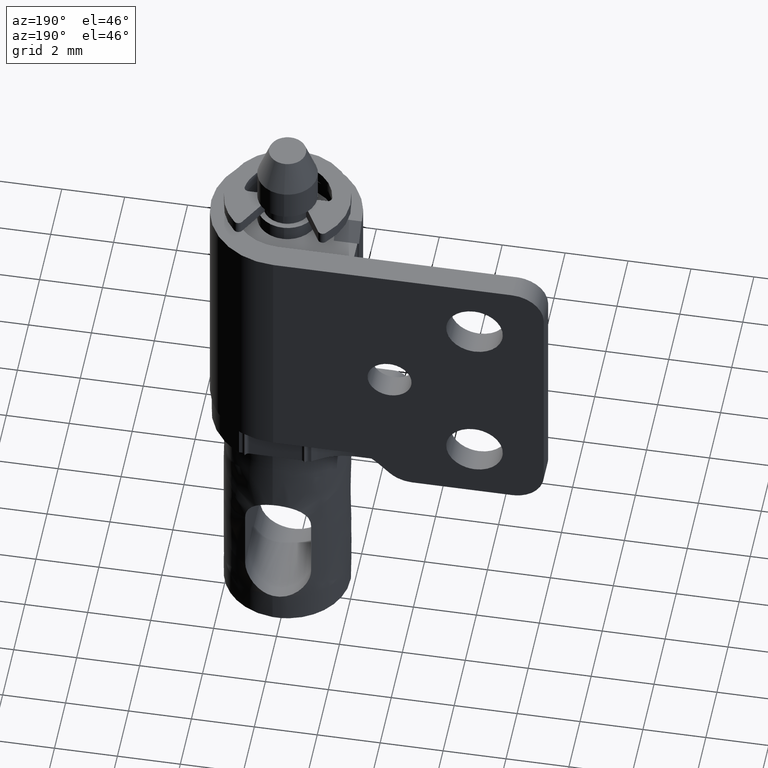
[diagram: clean part render]
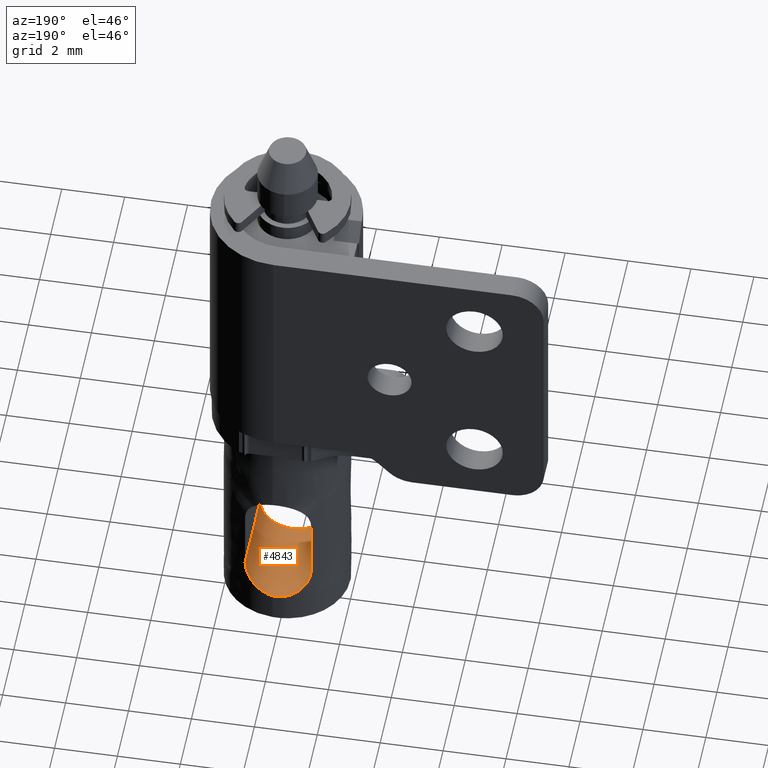
[diagram: same view with one face highlighted and labeled with its STEP entity id]
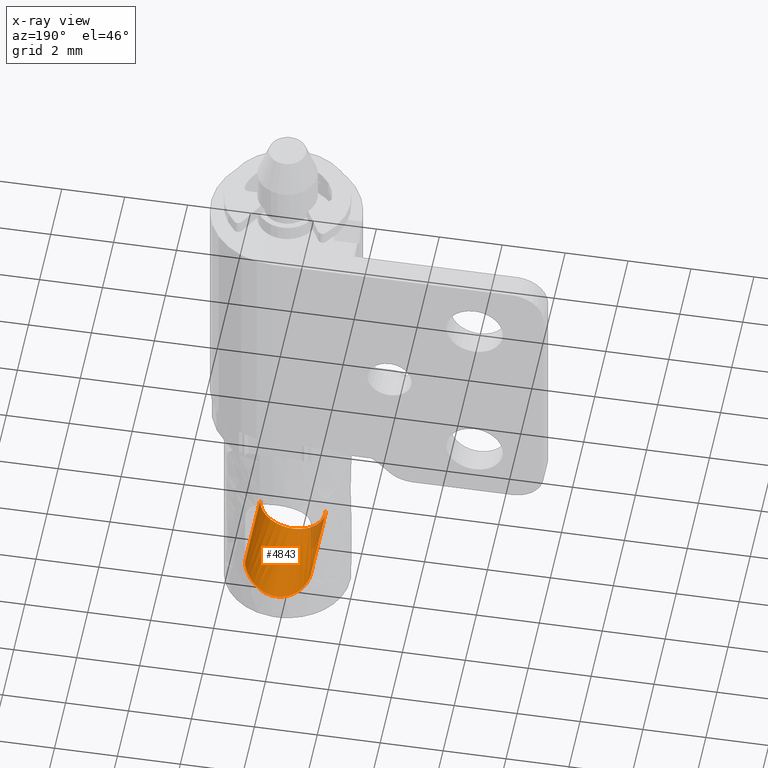
[diagram: x-ray of the same camera — body ghosted, the highlighted face saturated]
A machine part, auxiliary view. The second image highlights one B-rep face of the part: STEP entity #4843.
The next image is the same camera in x-ray: the body ghosted, the highlighted face saturated — about 5% of this face is hidden behind the body in this view.
In plain terms, the highlighted face is a freeform B-spline surface patch.
Its self-contained STEP definition (entity closure, byte-faithful):
#4572=CARTESIAN_POINT('',(0.122097138440209,1.996270568311128,1.457110530704186));
#4573=VERTEX_POINT('',#4572);
#4579=CARTESIAN_POINT('',(1.050000000000000,1.702204453054895,2.500000000000315));
#4580=VERTEX_POINT('',#4579);
#4581=CARTESIAN_POINT('',(1.050000000000000,1.702204453054895,2.500000000000315));
#4582=CARTESIAN_POINT('',(1.049999997843562,1.702204417803819,2.429190315347657));
#4583=CARTESIAN_POINT('',(1.042914371542568,1.706629887277437,2.359895324812856));
#4584=CARTESIAN_POINT('',(1.022327171685974,1.718985377329022,2.258034989970949));
#4585=CARTESIAN_POINT('',(1.013791112579341,1.724055401675163,2.224430603373508));
#4586=CARTESIAN_POINT('',(0.993321099278045,1.735929860574345,2.157912144188070));
#4587=CARTESIAN_POINT('',(0.981491573445794,1.742671072979830,2.125372533297143));
#4588=CARTESIAN_POINT('',(0.941769941992006,1.764648473998227,2.030686416133225));
#4589=CARTESIAN_POINT('',(0.909565548645357,1.781703221353928,1.971019154170268));
#4590=CARTESIAN_POINT('',(0.852653115195682,1.809261014821606,1.886289817915313));
#4591=CARTESIAN_POINT('',(0.832321536793097,1.818732455050970,1.859003478835041));
#4592=CARTESIAN_POINT('',(0.789504331883004,1.837724027192108,1.806949793763671));
#4593=CARTESIAN_POINT('',(0.744383534401892,1.856837851208812,1.757188399305397));
#4594=CARTESIAN_POINT('',(0.694612087317837,1.875707527794190,1.711863229349591));
#4595=CARTESIAN_POINT('',(0.642412373609041,1.894220373632658,1.668764856798374));
#4596=CARTESIAN_POINT('',(0.614951995788496,1.903339716630245,1.648242493004011));
#4597=CARTESIAN_POINT('',(0.530332170876721,1.929307423965736,1.591223257539174));
#4598=CARTESIAN_POINT('',(0.470694216736649,1.944888489474102,1.558922233321806));
#4599=CARTESIAN_POINT('',(0.376122996929222,1.964577572088593,1.519081264134065));
#4600=CARTESIAN_POINT('',(0.343741128675407,1.970526624590317,1.507247582440761));
#4601=CARTESIAN_POINT('',(0.277134080252814,1.980992091796419,1.486633317519231));
#4602=CARTESIAN_POINT('',(0.243122988689270,1.985462413540968,1.477943407465282));
#4603=CARTESIAN_POINT('',(0.180244525229566,1.992071130369848,1.465168500813466));
#4604=CARTESIAN_POINT('',(0.151259239521479,1.994486593591308,1.460526974901048));
#4605=CARTESIAN_POINT('',(0.122097138440209,1.996270568311128,1.457110530704186));
#4606=B_SPLINE_CURVE_WITH_KNOTS('',3,(#4581,#4582,#4583,#4584,#4585,#4586,#4587,#4588,#4589,#4590,#4591,#4592,#4593,#4594,#4595,#4596,#4597,#4598,#4599,#4600,#4601,#4602,#4603,#4604,#4605),.UNSPECIFIED.,.F.,.U.,(4,2,2,2,2,2,1,2,2,2,2,2,4),(0.0,0.062500000000000,0.093750000000000,0.125000000000000,0.187500000000000,0.218750000000000,0.250000000000000,0.281250000000000,0.312500000000000,0.375000000000000,0.406250000000000,0.437500000000000,0.463928383885214),.UNSPECIFIED.);
#4607=EDGE_CURVE('',#4580,#4573,#4606,.T.);
#4706=CARTESIAN_POINT('',(-1.049999999999982,1.702204453054915,2.500000000000315));
#4707=VERTEX_POINT('',#4706);
#4713=CARTESIAN_POINT('',(0.122097138440209,1.996270568311128,1.457110530704186));
#4714=CARTESIAN_POINT('',(0.082294324096909,1.998705518618217,1.452447488723573));
#4715=CARTESIAN_POINT('',(0.042162120059222,1.999964067821110,1.450066653809898));
#4716=CARTESIAN_POINT('',(-0.033365006485804,2.000028071628639,1.449944805866169));
#4717=CARTESIAN_POINT('',(-0.068887863654863,1.999118361514702,1.451674418712861));
#4718=CARTESIAN_POINT('',(-0.138745152379171,1.995487332581543,1.458615415976737));
#4719=CARTESIAN_POINT('',(-0.207701091476083,1.990067606391173,1.468994864806753));
#4720=CARTESIAN_POINT('',(-0.274922942179861,1.981298102216255,1.486036372490954));
#4721=CARTESIAN_POINT('',(-0.341288449204815,1.970950827065530,1.506406994186485));
#4722=CARTESIAN_POINT('',(-0.374204915336974,1.964949459311397,1.518336079381823));
#4723=CARTESIAN_POINT('',(-0.469775838495646,1.945132933233049,1.558414075007463));
#4724=CARTESIAN_POINT('',(-0.529700380984055,1.929481871842707,1.590854508347256));
#4725=CARTESIAN_POINT('',(-0.614364661826977,1.903529687560066,1.647818623343295));
#4726=CARTESIAN_POINT('',(-0.641831755086658,1.894418513927280,1.668312837974577));
#4727=CARTESIAN_POINT('',(-0.694192953431565,1.875864022472252,1.711490215328188));
#4728=CARTESIAN_POINT('',(-0.719131521053161,1.866414411064769,1.734180319513034));
#4729=CARTESIAN_POINT('',(-0.790396337234475,1.837903868401182,1.805526664195685));
#4730=CARTESIAN_POINT('',(-0.833212517056575,1.818666076785756,1.857414744935122));
#4731=CARTESIAN_POINT('',(-0.909392064951677,1.781795663733067,1.970693874062990));
#4732=CARTESIAN_POINT('',(-0.941542243375601,1.764767794267285,2.030291455493414));
#4733=CARTESIAN_POINT('',(-0.981095836397192,1.742893380500789,2.124356614310751));
#4734=CARTESIAN_POINT('',(-0.992823303561986,1.736214461105092,2.156497043223731));
#4735=CARTESIAN_POINT('',(-1.013246877116536,1.724375150418790,2.222469541690372));
#4736=CARTESIAN_POINT('',(-1.021979272369109,1.719192873504454,2.256517455233375));
#4737=CARTESIAN_POINT('',(-1.042900313161225,1.706640938595896,2.359428239672656));
#4738=CARTESIAN_POINT('',(-1.050000001723808,1.702204424875695,2.429132454962987));
#4739=CARTESIAN_POINT('',(-1.049999999999982,1.702204453054915,2.500000000000315));
#4740=B_SPLINE_CURVE_WITH_KNOTS('',3,(#4713,#4714,#4715,#4716,#4717,#4718,#4719,#4720,#4721,#4722,#4723,#4724,#4725,#4726,#4727,#4728,#4729,#4730,#4731,#4732,#4733,#4734,#4735,#4736,#4737,#4738,#4739),.UNSPECIFIED.,.F.,.U.,(4,2,2,1,2,2,2,2,2,2,2,2,2,4),(0.463928383885214,0.500000000000000,0.531250000000000,0.562500000000000,0.593750000000000,0.625000000000000,0.687499999999999,0.718750000000000,0.750000000000000,0.812500000000000,0.875000000000000,0.906250000000000,0.937500000000000,1.0),.UNSPECIFIED.);
#4741=EDGE_CURVE('',#4573,#4707,#4740,.T.);
#4786=CARTESIAN_POINT('',(1.049640191224349,2.074999986151890,2.527485795723583));
#4787=CARTESIAN_POINT('',(1.049640191224349,-1.076874999653798,2.527485795723583));
#4788=CARTESIAN_POINT('',(1.078604176485062,2.074999986151890,1.421395823515270));
#4789=CARTESIAN_POINT('',(1.078604176485062,-1.076874999653798,1.421395823515270));
#4790=CARTESIAN_POINT('',(-0.027485795723251,2.074999986151890,1.450359808775980));
#4791=CARTESIAN_POINT('',(-0.027485795723251,-1.076874999653798,1.450359808775980));
#4792=CARTESIAN_POINT('',(-1.133575767931565,2.074999986151890,1.479323794036690));
#4793=CARTESIAN_POINT('',(-1.133575767931565,-1.076874999653798,1.479323794036690));
#4794=CARTESIAN_POINT('',(-1.046763200419770,2.074999986151890,2.582382050514551));
#4795=CARTESIAN_POINT('',(-1.046763200419770,-1.076874999653798,2.582382050514551));
#4803=(BOUNDED_SURFACE()B_SPLINE_SURFACE(1,2,((#4786,#4788,#4790,#4792,#4794),(#4787,#4789,#4791,#4793,#4795)),.UNSPECIFIED.,.F.,.F.,.U.)B_SPLINE_SURFACE_WITH_KNOTS((2,2),(3,2,3),(0.0,3.151874985805688),(0.0,1.0,2.0),.UNSPECIFIED.)GEOMETRIC_REPRESENTATION_ITEM()RATIONAL_B_SPLINE_SURFACE(((1.0,0.688354575693754,1.0,0.688354575693754,1.0),(1.0,0.688354575693754,1.0,0.688354575693754,1.0)))REPRESENTATION_ITEM('')SURFACE());
#4804=ORIENTED_EDGE('',*,*,#4607,.T.);
#4805=ORIENTED_EDGE('',*,*,#4741,.T.);
#4806=CARTESIAN_POINT('',(-1.049999999999982,-1.0,2.500000000000315));
#4807=VERTEX_POINT('',#4806);
#4808=CARTESIAN_POINT('',(-1.049999999999982,1.702204453054915,2.500000000000315));
#4809=CARTESIAN_POINT('',(-1.049999999999982,-1.0,2.500000000000315));
#4810=QUASI_UNIFORM_CURVE('',1,(#4808,#4809),.UNSPECIFIED.,.F.,.U.);
#4811=EDGE_CURVE('',#4707,#4807,#4810,.T.);
#4812=ORIENTED_EDGE('',*,*,#4811,.T.);
#4813=CARTESIAN_POINT('',(1.050000000000000,-1.0,2.500000000000315));
#4814=VERTEX_POINT('',#4813);
#4815=CARTESIAN_POINT('',(-1.049999999999982,-1.0,2.500000000000315));
#4816=CARTESIAN_POINT('',(-1.050034563449679,-1.000000000000001,2.401210301950414));
#4817=CARTESIAN_POINT('',(-1.027402581454614,-1.000000000000000,2.242313626990311));
#4818=CARTESIAN_POINT('',(-0.946710493747288,-1.000000000000002,2.033165282395530));
#4819=CARTESIAN_POINT('',(-0.832479415124741,-0.999999999999998,1.845156458426439));
#4820=CARTESIAN_POINT('',(-0.681135440842526,-0.999999999999999,1.690043767626710));
#4821=CARTESIAN_POINT('',(-0.494050770336201,-1.000000000000002,1.566726603661680));
#4822=CARTESIAN_POINT('',(-0.291095771597486,-0.999999999999999,1.481172985971034));
#4823=CARTESIAN_POINT('',(-0.034803184187538,-1.000000000000006,1.438303233715093));
#4824=CARTESIAN_POINT('',(0.215377438087456,-0.999999999999998,1.462958095435377));
#4825=CARTESIAN_POINT('',(0.419730575980161,-1.0,1.531889177751430));
#4826=CARTESIAN_POINT('',(0.586387025164563,-1.0,1.622281431183010));
#4827=CARTESIAN_POINT('',(0.744764805117032,-1.0,1.749025240666292));
#4828=CARTESIAN_POINT('',(0.887328913002809,-1.0,1.922733002309881));
#4829=CARTESIAN_POINT('',(0.982526836927044,-1.0,2.111878288931167));
#4830=CARTESIAN_POINT('',(1.037726357806039,-1.0,2.306726773636981));
#4831=CARTESIAN_POINT('',(1.050008753049392,-1.0,2.431280755383087));
#4832=CARTESIAN_POINT('',(1.050000000000000,-1.0,2.500000000000315));
#4833=B_SPLINE_CURVE_WITH_KNOTS('',3,(#4815,#4816,#4817,#4818,#4819,#4820,#4821,#4822,#4823,#4824,#4825,#4826,#4827,#4828,#4829,#4830,#4831,#4832),.UNSPECIFIED.,.F.,.U.,(4,1,1,1,1,1,1,1,1,1,1,1,1,1,1,4),(0.000000050669083,0.296358074275881,0.476761336998964,0.670044411282070,0.953529938346741,1.121042425956720,1.340103371685886,1.610702016977151,1.894160961521817,2.087447614227056,2.254962005493981,2.461134184037079,2.693074554977555,2.925017593011008,3.092535496696340,3.298692984055481),.UNSPECIFIED.);
#4834=EDGE_CURVE('',#4807,#4814,#4833,.T.);
#4835=ORIENTED_EDGE('',*,*,#4834,.T.);
#4836=CARTESIAN_POINT('',(1.050000000000000,1.702204453054895,2.500000000000315));
#4837=CARTESIAN_POINT('',(1.050000000000000,-1.0,2.500000000000315));
#4838=QUASI_UNIFORM_CURVE('',1,(#4836,#4837),.UNSPECIFIED.,.F.,.U.);
#4839=EDGE_CURVE('',#4580,#4814,#4838,.T.);
#4840=ORIENTED_EDGE('',*,*,#4839,.F.);
#4841=EDGE_LOOP('',(#4804,#4805,#4812,#4835,#4840));
#4842=FACE_OUTER_BOUND('',#4841,.T.);
#4843=ADVANCED_FACE('',(#4842),#4803,.F.);